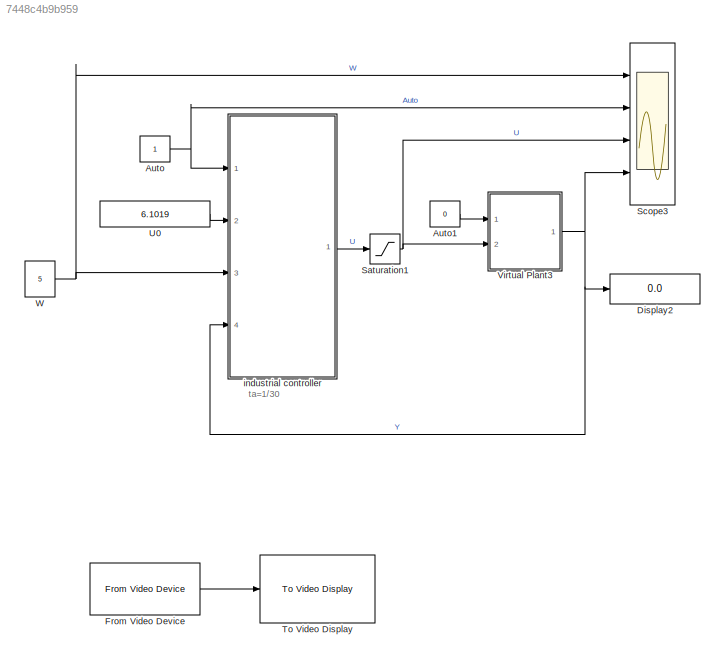
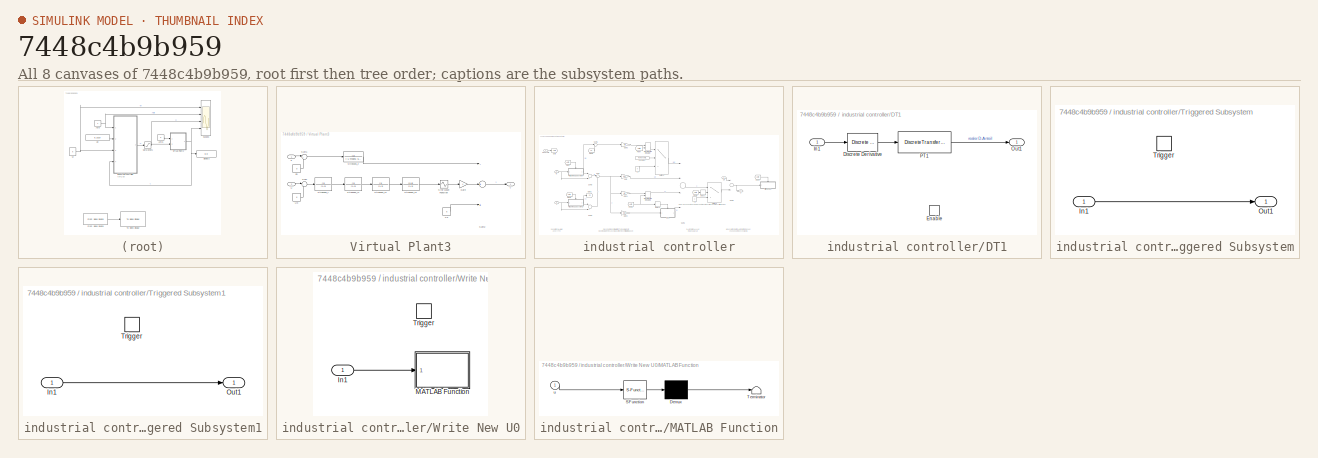
[diagram: thumbnail index - all 8 canvases of the model, root first then tree order]
MODEL slx_7448c4b9b959
KIND model
CONFIG AbsTol = auto
CONFIG FixedStep = auto
CONFIG MaxStep = auto
CONFIG MinStep = auto
CONFIG RelTol = 1e-3
CONFIG SampleTimeConstraint = Unconstrained
CONFIG Solver = ode45
CONFIG SolverMode = Auto
CONFIG SolverName = ode45
CONFIG StartTime = 0.0
CONFIG StopFcn = %serialWrite(0,COMPort,true)
CONFIG StopTime = 10.0
WORKSPACE source: MAT-file member
WORKSPACE ta = 0.0333333333333
BLOCK [Constant] Auto
BLOCK [Constant] Auto1
  Value = 0
BLOCK [Display] Display2
  Decimation = 1
  Ports = [1]
BLOCK [Reference] From Video Device  REF=imaqlib/From Video Device
  Ports = [0, 1]
  SourceBlock = imaqlib/From Video Device
  SourceType = From Video Device
  UserDataPersistent = on
BLOCK [Saturate] Saturation1
  AttributesFormatString = Lower Limit=%<LowerLimit>\nUpper Limit=%<UpperLimit>
  InputPortMap = u0
  LowerLimit = 4.5
  Ports = [1, 1]
  UpperLimit = 7.5
BLOCK [Scope] Scope3
  NumInputPorts = 4
  Ports = [4]
  ScopeSpecificationString = Simulink.scopes.TimeScopeBlockCfg('CurrentConfiguration', extmgr.ConfigurationSet(extmgr.Configuration('Core','General UI',true,'FigureColor',[1 1 1]),extmgr.Configuration('Core','Source UI',true),extmgr.Configuration('Sources','WiredSimulink',true,'DataLoggingSaveFormat','StructureWithTime'),extmgr.Configuration('Visuals','Time Domain',true,'SerializedDisplays',{struct('MinYLimReal','-0.79772','M...<+1934ch>
BLOCK [Reference] To Video Display  REF=visionsinks/To Video Display
  Ports = [1]
  SourceBlock = visionsinks/To Video Display
  SourceType = To Video Display
BLOCK [Constant] U0
  Value = 6.1019
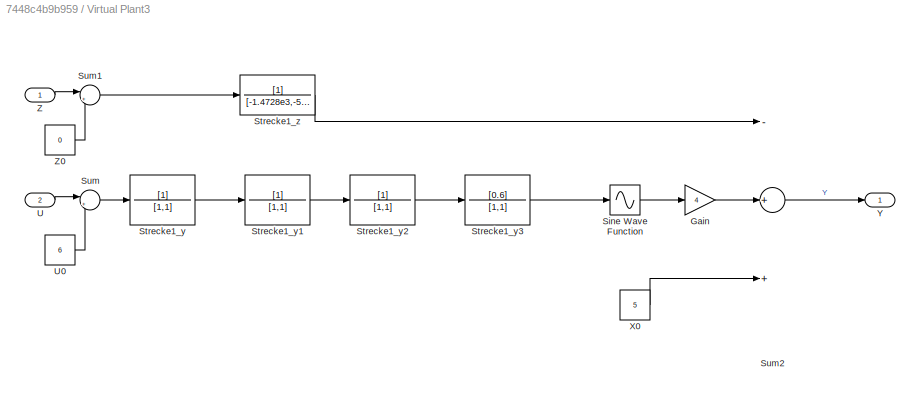
BLOCK [SubSystem] Virtual Plant3
  Ports = [2, 1]
  RequestExecContextInheritance = off
  Variant = off
BLOCK [Gain] Virtual Plant3/Gain
  Gain = 4
  OutDataTypeStr = Inherit: Inherit via internal rule
  ParamDataTypeStr = Inherit: Inherit via internal rule
  SaturateOnIntegerOverflow = off
BLOCK [Sin] Virtual Plant3/Sine Wave Function
  Ports = [1, 1]
  SampleTime = 0
  TimeSource = Use external signal
BLOCK [TransferFcn] Virtual Plant3/Strecke1_y
  Denominator = [1,1]
BLOCK [TransferFcn] Virtual Plant3/Strecke1_y1
  Denominator = [1,1]
BLOCK [TransferFcn] Virtual Plant3/Strecke1_y2
  Denominator = [1,1]
BLOCK [TransferFcn] Virtual Plant3/Strecke1_y3
  Denominator = [1,1]
  Numerator = [0.6]
BLOCK [TransferFcn] Virtual Plant3/Strecke1_z
  Denominator = [-1.4728e3,-534.157,-137.5577,-4.4778]
BLOCK [Sum] Virtual Plant3/Sum
  IconShape = round
  InputSameDT = off
  Inputs = |+-
  OutDataTypeStr = Inherit: Inherit via internal rule
  Ports = [2, 1]
  SaturateOnIntegerOverflow = off
BLOCK [Sum] Virtual Plant3/Sum1
  IconShape = round
  InputSameDT = off
  Inputs = |+-
  OutDataTypeStr = Inherit: Inherit via internal rule
  Ports = [2, 1]
  SaturateOnIntegerOverflow = off
BLOCK [Sum] Virtual Plant3/Sum2
  InputSameDT = off
  Inputs = -++
  OutDataTypeStr = Inherit: Inherit via internal rule
  Ports = [3, 1]
  SaturateOnIntegerOverflow = off
BLOCK [Inport] Virtual Plant3/U
  IconDisplay = Port number
  Port = 2
BLOCK [Constant] Virtual Plant3/U0
  Value = 6
BLOCK [Constant] Virtual Plant3/X0
  Value = 5
BLOCK [Outport] Virtual Plant3/Y
  IconDisplay = Port number
BLOCK [Inport] Virtual Plant3/Z
  IconDisplay = Port number
BLOCK [Constant] Virtual Plant3/Z0
  Value = 0
BLOCK [Constant] W
  Value = 5
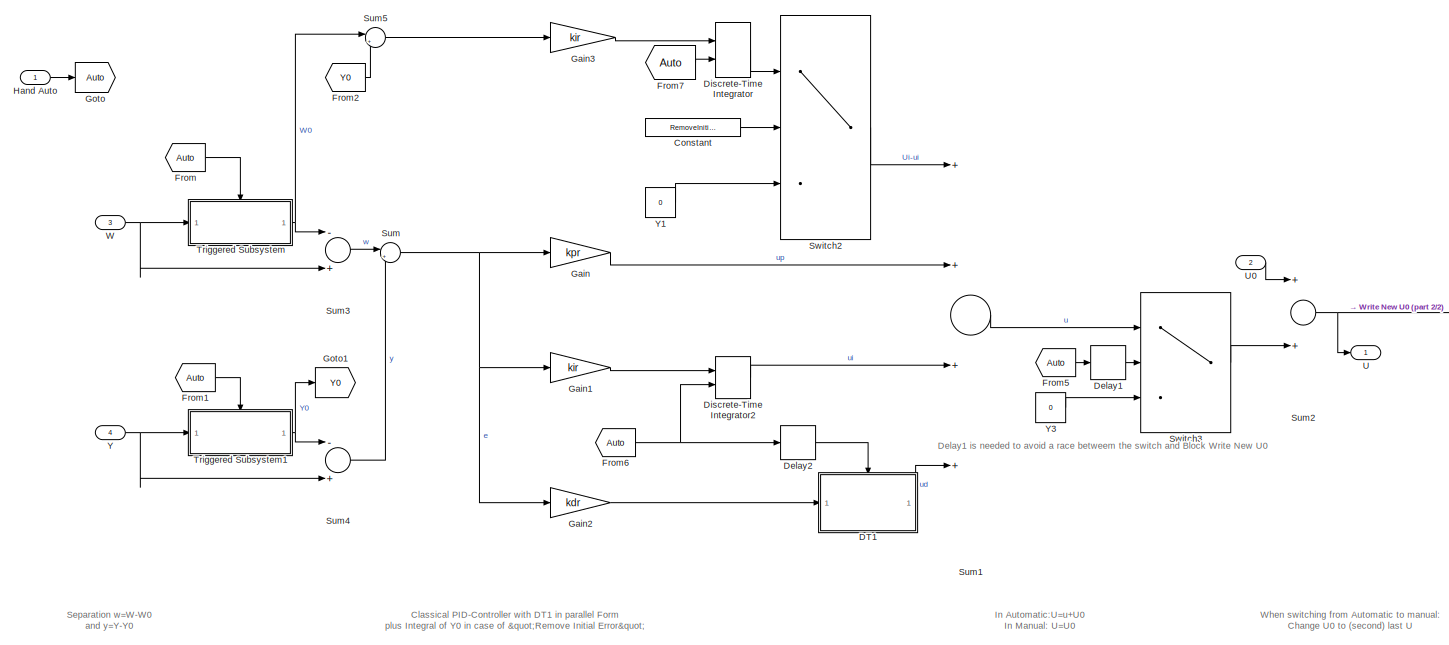
[diagram: industrial controller - part 1/2, most of the canvas]
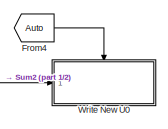
[diagram: industrial controller - part 2/2, middle right region]
BLOCK [SubSystem] industrial controller
  Ports = [4, 1]
  RequestExecContextInheritance = off
  Variant = off
BLOCK [Constant] industrial controller/Constant
  Value = RemoveInitialError
BLOCK [SubSystem] industrial controller/DT1
  Ports = [1, 1, 1]
  RequestExecContextInheritance = off
  Variant = off
BLOCK [Reference] industrial controller/DT1/Discrete Derivative  REF=simulink/Discrete/Discrete Derivative
  Ports = [1, 1]
  SourceBlock = simulink/Discrete/Discrete Derivative
  SourceType = Discrete Derivative
BLOCK [EnablePort] industrial controller/DT1/Enable
  Ports = []
BLOCK [Inport] industrial controller/DT1/In1
  IconDisplay = Port number
BLOCK [Outport] industrial controller/DT1/Out1
  IconDisplay = Port number
BLOCK [DiscreteTransferFcn] industrial controller/DT1/PT1
  Denominator = [1 -exp(-ta/T)]
  InputPortMap = u0
  Numerator = [1-exp(-ta/T) 0]
  Ports = [1, 1]
  SampleTime = ta
BLOCK [Delay] industrial controller/Delay1
  DelayLength = 1
  InputPortMap = u0
  Ports = [1, 1]
BLOCK [Delay] industrial controller/Delay2
  DelayLength = 1
  InputPortMap = u0
  Ports = [1, 1]
BLOCK [DiscreteIntegrator] industrial controller/Discrete-Time Integrator
  ExternalReset = rising
  ICPrevOutput = DiscIntNeverNeededParam
  ICPrevScaledInput = DiscIntNeverNeededParam
  Ports = [2, 1]
  SampleTime = ta
BLOCK [DiscreteIntegrator] industrial controller/Discrete-Time Integrator2
  ExternalReset = rising
  ICPrevOutput = DiscIntNeverNeededParam
  ICPrevScaledInput = DiscIntNeverNeededParam
  Ports = [2, 1]
  SampleTime = ta
BLOCK [From] industrial controller/From
  CloseFcn = tagdialog Close
  GotoTag = Auto
BLOCK [From] industrial controller/From1
  CloseFcn = tagdialog Close
  GotoTag = Auto
BLOCK [From] industrial controller/From2
  CloseFcn = tagdialog Close
  GotoTag = Y0
BLOCK [From] industrial controller/From4
  CloseFcn = tagdialog Close
  GotoTag = Auto
BLOCK [From] industrial controller/From5
  CloseFcn = tagdialog Close
  GotoTag = Auto
BLOCK [From] industrial controller/From6
  CloseFcn = tagdialog Close
  GotoTag = Auto
BLOCK [From] industrial controller/From7
  CloseFcn = tagdialog Close
  GotoTag = Auto
BLOCK [Gain] industrial controller/Gain
  Gain = kpr
  OutDataTypeStr = Inherit: Inherit via internal rule
  ParamDataTypeStr = Inherit: Inherit via internal rule
  SaturateOnIntegerOverflow = off
BLOCK [Gain] industrial controller/Gain1
  Gain = kir
  OutDataTypeStr = Inherit: Inherit via internal rule
  ParamDataTypeStr = Inherit: Inherit via internal rule
  SaturateOnIntegerOverflow = off
BLOCK [Gain] industrial controller/Gain2
  Gain = kdr
  OutDataTypeStr = Inherit: Inherit via internal rule
  ParamDataTypeStr = Inherit: Inherit via internal rule
  SaturateOnIntegerOverflow = off
BLOCK [Gain] industrial controller/Gain3
  Gain = kir
  OutDataTypeStr = Inherit: Inherit via internal rule
  ParamDataTypeStr = Inherit: Inherit via internal rule
  SaturateOnIntegerOverflow = off
BLOCK [Goto] industrial controller/Goto
  GotoTag = Auto
BLOCK [Goto] industrial controller/Goto1
  GotoTag = Y0
BLOCK [Inport] industrial controller/Hand Auto
  IconDisplay = Port number
BLOCK [Sum] industrial controller/Sum
  IconShape = round
  InputSameDT = off
  Inputs = |+-
  OutDataTypeStr = Inherit: Inherit via internal rule
  Ports = [2, 1]
  SaturateOnIntegerOverflow = off
BLOCK [Sum] industrial controller/Sum1
  InputSameDT = off
  Inputs = ++++
  OutDataTypeStr = Inherit: Inherit via internal rule
  Ports = [4, 1]
  SaturateOnIntegerOverflow = off
BLOCK [Sum] industrial controller/Sum2
  InputSameDT = off
  OutDataTypeStr = Inherit: Inherit via internal rule
  Ports = [2, 1]
  SaturateOnIntegerOverflow = off
BLOCK [Sum] industrial controller/Sum3
  InputSameDT = off
  Inputs = -+
  OutDataTypeStr = Inherit: Inherit via internal rule
  Ports = [2, 1]
  SaturateOnIntegerOverflow = off
BLOCK [Sum] industrial controller/Sum4
  InputSameDT = off
  Inputs = -+
  OutDataTypeStr = Inherit: Inherit via internal rule
  Ports = [2, 1]
  SaturateOnIntegerOverflow = off
BLOCK [Sum] industrial controller/Sum5
  IconShape = round
  InputSameDT = off
  Inputs = |+-
  OutDataTypeStr = Inherit: Inherit via internal rule
  Ports = [2, 1]
  SaturateOnIntegerOverflow = off
BLOCK [Switch] industrial controller/Switch2
  InputSameDT = off
  SaturateOnIntegerOverflow = off
  Threshold = 0.5
BLOCK [Switch] industrial controller/Switch3
  InputSameDT = off
  SaturateOnIntegerOverflow = off
  Threshold = 0.5
BLOCK [SubSystem] industrial controller/Triggered Subsystem
  Ports = [1, 1, 0, 1]
  RequestExecContextInheritance = off
  TreatAsAtomicUnit = on
  Variant = off
BLOCK [Inport] industrial controller/Triggered Subsystem/In1
  IconDisplay = Port number
BLOCK [Outport] industrial controller/Triggered Subsystem/Out1
  IconDisplay = Port number
BLOCK [TriggerPort] industrial controller/Triggered Subsystem/Trigger
  Ports = []
  StatesWhenEnabling = held
BLOCK [SubSystem] industrial controller/Triggered Subsystem1
  Ports = [1, 1, 0, 1]
  RequestExecContextInheritance = off
  TreatAsAtomicUnit = on
  Variant = off
BLOCK [Inport] industrial controller/Triggered Subsystem1/In1
  IconDisplay = Port number
BLOCK [Outport] industrial controller/Triggered Subsystem1/Out1
  IconDisplay = Port number
BLOCK [TriggerPort] industrial controller/Triggered Subsystem1/Trigger
  Ports = []
  StatesWhenEnabling = held
BLOCK [Outport] industrial controller/U
  IconDisplay = Port number
BLOCK [Inport] industrial controller/U0
  IconDisplay = Port number
  Port = 2
BLOCK [Inport] industrial controller/W
  IconDisplay = Port number
  Port = 3
BLOCK [SubSystem] industrial controller/Write New U0
  Ports = [1, 0, 0, 1]
  RequestExecContextInheritance = off
  TreatAsAtomicUnit = on
  Variant = off
BLOCK [Inport] industrial controller/Write New U0/In1
  IconDisplay = Port number
BLOCK [SubSystem] industrial controller/Write New U0/MATLAB Function
  ErrorFcn = Stateflow.Translate.translate
  PermitHierarchicalResolution = ExplicitOnly
  Ports = [1]
  RequestExecContextInheritance = off
  SFBlockType = MATLAB Function
  TreatAsAtomicUnit = on
  Variant = off
BLOCK [Demux] industrial controller/Write New U0/MATLAB Function/ Demux 
  Outputs = 1
  Ports = [1, 1]
BLOCK [S-Function] industrial controller/Write New U0/MATLAB Function/ SFunction 
  EnableBusSupport = on
  FunctionName = sf_sfun
  PortCounts = [1 1]
  Ports = [1, 1]
  SFunctionDeploymentMode = off
  Tag = Stateflow S-Function industrialController 4
BLOCK [Terminator] industrial controller/Write New U0/MATLAB Function/ Terminator 
BLOCK [Inport] industrial controller/Write New U0/MATLAB Function/u
  IconDisplay = Port number
BLOCK [TriggerPort] industrial controller/Write New U0/Trigger
  Ports = []
  StatesWhenEnabling = held
  TriggerType = falling
BLOCK [Inport] industrial controller/Y
  IconDisplay = Port number
  Port = 4
BLOCK [Constant] industrial controller/Y1
  Value = 0
BLOCK [Constant] industrial controller/Y3
  Value = 0
ANNOTATION (root): ta=1/30
ANNOTATION industrial controller: Classical PID-Controller with DT1 in parallel Form plus Integral of Y0 in case of "Remove Initial Error"
ANNOTATION industrial controller: In Automatic:U=u+U0 In Manual: U=U0
ANNOTATION industrial controller: Separation w=W-W0 and y=Y-Y0
ANNOTATION industrial controller: When switching from Automatic to manual: Change U0 to (second) last U
ANNOTATION industrial controller: Delay1 is needed to avoid a race betweem the switch and Block Write New U0
LINE Auto1:1 -> Virtual Plant3:1
NET Auto:1 -> Scope3:2, industrial controller:1
LINE From Video Device:1 -> To Video Display:1
NET Saturation1:1 -> Scope3:3, Virtual Plant3:2
LINE U0:1 -> industrial controller:2
LINE Virtual Plant3/Gain:1 -> Virtual Plant3/Sum2:2
LINE Virtual Plant3/Sine Wave Function:1 -> Virtual Plant3/Gain:1
LINE Virtual Plant3/Strecke1_y1:1 -> Virtual Plant3/Strecke1_y2:1
LINE Virtual Plant3/Strecke1_y2:1 -> Virtual Plant3/Strecke1_y3:1
LINE Virtual Plant3/Strecke1_y3:1 -> Virtual Plant3/Sine Wave Function:1
LINE Virtual Plant3/Strecke1_y:1 -> Virtual Plant3/Strecke1_y1:1
LINE Virtual Plant3/Strecke1_z:1 -> Virtual Plant3/Sum2:1
LINE Virtual Plant3/Sum1:1 -> Virtual Plant3/Strecke1_z:1
LINE Virtual Plant3/Sum2:1 -> Virtual Plant3/Y:1
LINE Virtual Plant3/Sum:1 -> Virtual Plant3/Strecke1_y:1
LINE Virtual Plant3/U0:1 -> Virtual Plant3/Sum:2
LINE Virtual Plant3/U:1 -> Virtual Plant3/Sum:1
LINE Virtual Plant3/X0:1 -> Virtual Plant3/Sum2:3
LINE Virtual Plant3/Z0:1 -> Virtual Plant3/Sum1:2
LINE Virtual Plant3/Z:1 -> Virtual Plant3/Sum1:1
NET Virtual Plant3:1 -> Display2:1, Scope3:4, industrial controller:4
NET W:1 -> Scope3:1, industrial controller:3
LINE industrial controller/Constant:1 -> industrial controller/Switch2:2
LINE industrial controller/DT1/Discrete Derivative:1 -> industrial controller/DT1/PT1:1
LINE industrial controller/DT1/In1:1 -> industrial controller/DT1/Discrete Derivative:1
LINE industrial controller/DT1/PT1:1 -> industrial controller/DT1/Out1:1
LINE industrial controller/DT1:1 -> industrial controller/Sum1:4
LINE industrial controller/Delay1:1 -> industrial controller/Switch3:2
LINE industrial controller/Delay2:1 -> industrial controller/DT1:enable
LINE industrial controller/Discrete-Time Integrator2:1 -> industrial controller/Sum1:3
LINE industrial controller/Discrete-Time Integrator:1 -> industrial controller/Switch2:1
LINE industrial controller/From1:1 -> industrial controller/Triggered Subsystem1:trigger
LINE industrial controller/From2:1 -> industrial controller/Sum5:2
LINE industrial controller/From4:1 -> industrial controller/Write New U0:trigger
LINE industrial controller/From5:1 -> industrial controller/Delay1:1
NET industrial controller/From6:1 -> industrial controller/Delay2:1, industrial controller/Discrete-Time Integrator2:2
LINE industrial controller/From7:1 -> industrial controller/Discrete-Time Integrator:2
LINE industrial controller/From:1 -> industrial controller/Triggered Subsystem:trigger
LINE industrial controller/Gain1:1 -> industrial controller/Discrete-Time Integrator2:1
LINE industrial controller/Gain2:1 -> industrial controller/DT1:1
LINE industrial controller/Gain3:1 -> industrial controller/Discrete-Time Integrator:1
LINE industrial controller/Gain:1 -> industrial controller/Sum1:2
LINE industrial controller/Hand Auto:1 -> industrial controller/Goto:1
LINE industrial controller/Sum1:1 -> industrial controller/Switch3:1
NET industrial controller/Sum2:1 -> industrial controller/U:1, industrial controller/Write New U0:1
LINE industrial controller/Sum3:1 -> industrial controller/Sum:1
LINE industrial controller/Sum4:1 -> industrial controller/Sum:2
LINE industrial controller/Sum5:1 -> industrial controller/Gain3:1
NET industrial controller/Sum:1 -> industrial controller/Gain1:1, industrial controller/Gain2:1, industrial controller/Gain:1
LINE industrial controller/Switch2:1 -> industrial controller/Sum1:1
LINE industrial controller/Switch3:1 -> industrial controller/Sum2:2
LINE industrial controller/Triggered Subsystem/In1:1 -> industrial controller/Triggered Subsystem/Out1:1
LINE industrial controller/Triggered Subsystem1/In1:1 -> industrial controller/Triggered Subsystem1/Out1:1
NET industrial controller/Triggered Subsystem1:1 -> industrial controller/Goto1:1, industrial controller/Sum4:1
NET industrial controller/Triggered Subsystem:1 -> industrial controller/Sum3:1, industrial controller/Sum5:1
LINE industrial controller/U0:1 -> industrial controller/Sum2:1
NET industrial controller/W:1 -> industrial controller/Sum3:2, industrial controller/Triggered Subsystem:1
LINE industrial controller/Write New U0/In1:1 -> industrial controller/Write New U0/MATLAB Function:1
LINE industrial controller/Y1:1 -> industrial controller/Switch2:3
LINE industrial controller/Y3:1 -> industrial controller/Switch3:3
NET industrial controller/Y:1 -> industrial controller/Sum4:2, industrial controller/Triggered Subsystem1:1
LINE industrial controller:1 -> Saturation1:1
note: NET lines group one-source signal fan-out (src -> all destinations, sorted); 1:1 wires keep LINE
CHART industrial controller/Write New U0/MATLAB Function states=1 transitions=1
  STATE_LABEL 'eML_blk_kernel()'
  STATE_LABEL "SCRIPT:\nfunction  fcn(u)\n%#codegen\ncoder.extrinsic('set_param')\ncoder.extrinsic('num2str')\ncoder.extrinsic('bdroot')\ncoder.extrinsic('get_param')\ncoder.extrinsic('gcbh')\ncoder.extrinsic('gcb')\ncoder.extrinsic('findstr')\ncoder.extrinsic('length')\n%My_ModelWorkSpace = get_param('C1','ModelWorkSpace')\n%My_ModelWorkSpace.assignin('U0', u)\n%An awefull lot of code just to move two hirachy steps up...\nst...<+2018ch>"
